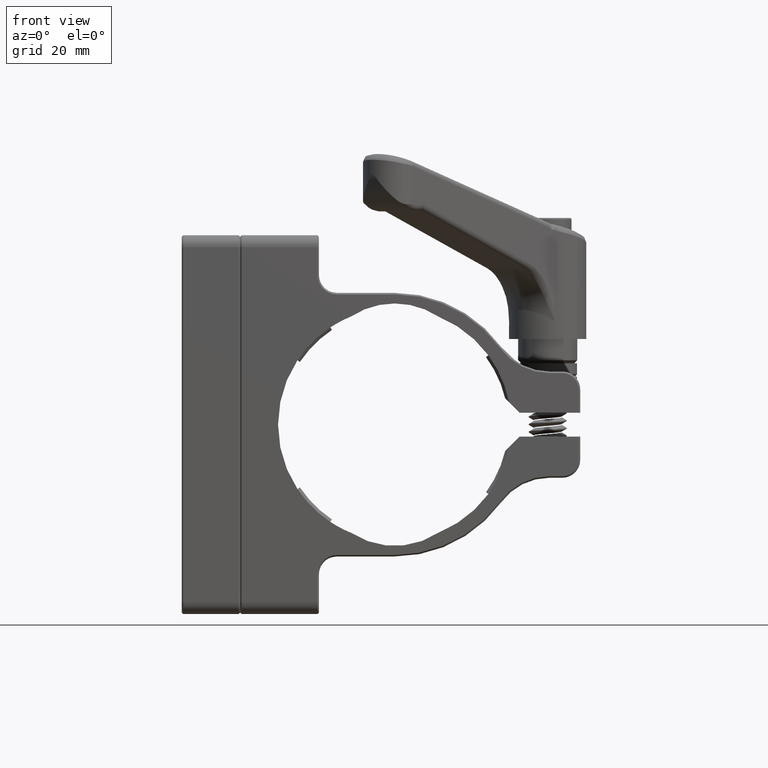
[diagram: clean part render]
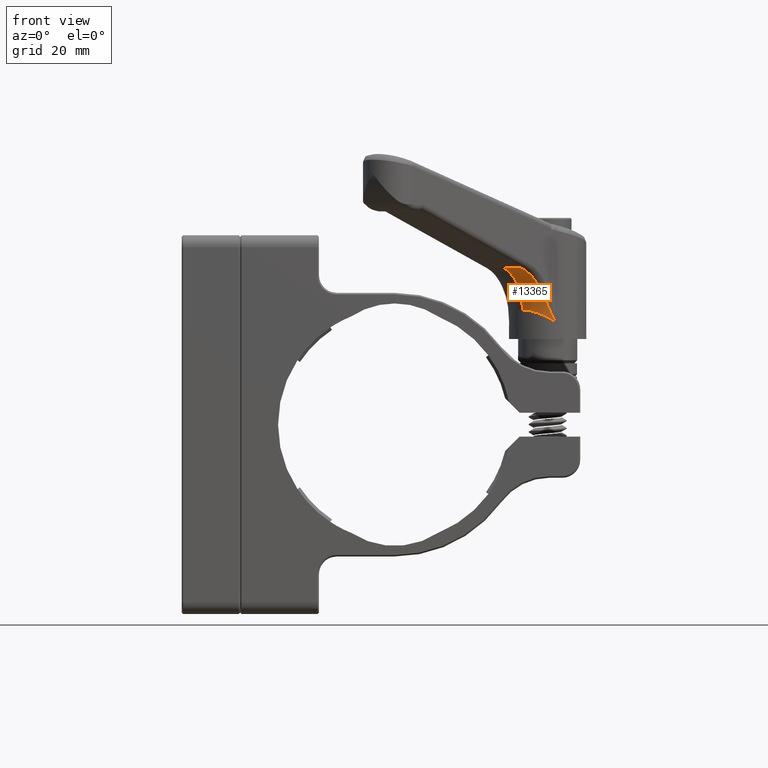
[diagram: same view with one face highlighted and labeled with its STEP entity id]
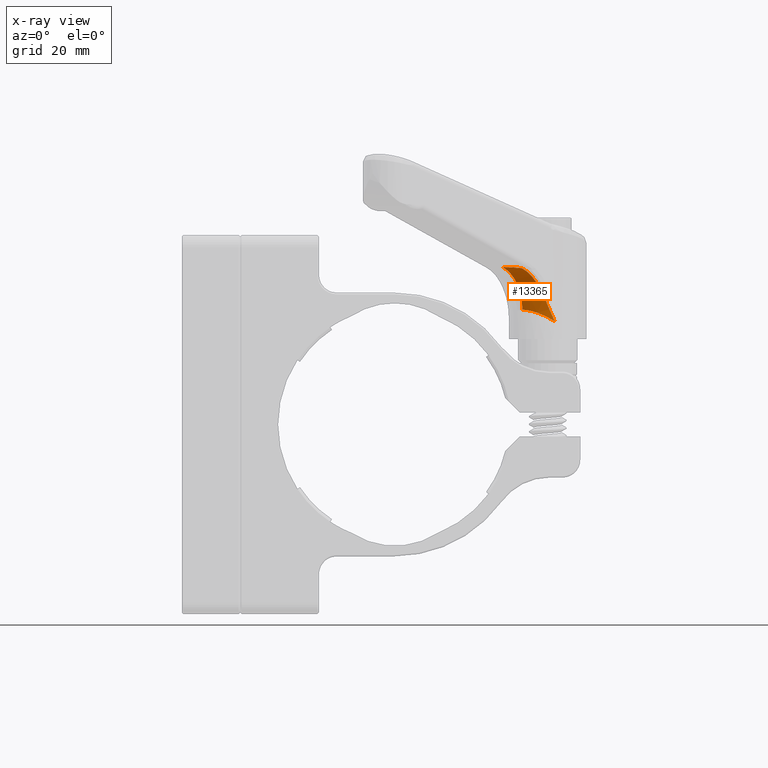
[diagram: x-ray of the same camera — body ghosted, the highlighted face saturated]
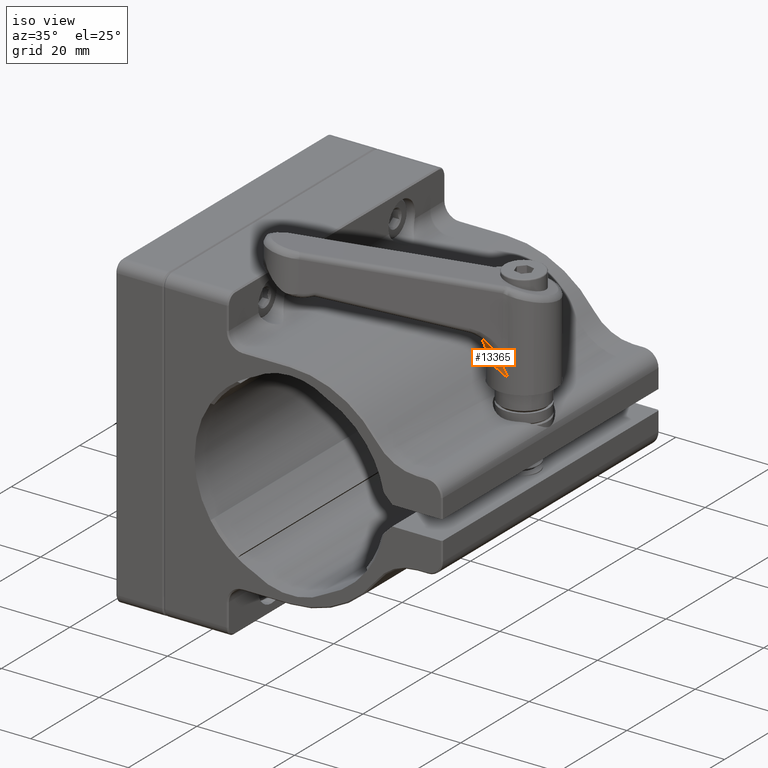
[diagram: same view with one face highlighted and labeled with its STEP entity id]
A machine part, front view. The second image highlights one B-rep face of the part: STEP entity #13365.
The next image is the same camera in x-ray: the body ghosted, the highlighted face saturated — about 0% of this face is hidden behind the body in this view.
A second angle (iso view) of the same face is appended — the face is thin or edge-on in the first view.
In plain terms, the highlighted face is a freeform B-spline surface patch.
Its self-contained STEP definition (entity closure, byte-faithful):
#25 = CARTESIAN_POINT ( 'NONE',  ( 45.69088704597130857, -6.453742316144195357, 17.61797061553146193 ) ) ;
#208 = CARTESIAN_POINT ( 'NONE',  ( 40.73553486959542624, -4.910587672800144077, 19.25086083805627624 ) ) ;
#268 = CARTESIAN_POINT ( 'NONE',  ( 44.23593948097993689, -6.454735057740339066, 18.37012175804300185 ) ) ;
#298 = CARTESIAN_POINT ( 'NONE',  ( 40.63719359826650646, -10.77046650938582495, 26.22679008906831655 ) ) ;
#751 = ORIENTED_EDGE ( 'NONE', *, *, #6478, .F. ) ;
#914 = CARTESIAN_POINT ( 'NONE',  ( 43.11573166805985835, -8.210056128275965648, 23.85748033936724966 ) ) ;
#972 = ORIENTED_EDGE ( 'NONE', *, *, #2085, .T. ) ;
#1061 = EDGE_CURVE ( 'NONE', #6924, #10843, #4206, .T. ) ;
#1066 = CARTESIAN_POINT ( 'NONE',  ( 46.13297107207620940, -6.369719061460112464, 17.33914807352784493 ) ) ;
#1074 = CARTESIAN_POINT ( 'NONE',  ( 40.63719359826650646, -10.77046650938582495, 26.22679008906831655 ) ) ;
#1292 = CARTESIAN_POINT ( 'NONE',  ( 40.73553486959542624, -4.910587672800144077, 19.25086083805627624 ) ) ;
#1333 = VERTEX_POINT ( 'NONE', #15014 ) ;
#1438 = CARTESIAN_POINT ( 'NONE',  ( 44.17207283345329927, -6.731122411469208977, 18.56910756929895001 ) ) ;
#1491 = CARTESIAN_POINT ( 'NONE',  ( 46.63010639130856561, -6.446397078288583771, 23.61125175658818875 ) ) ;
#1660 = CARTESIAN_POINT ( 'NONE',  ( 37.46618040148059237, -8.711838838238623595, 26.41130911785059965 ) ) ;
#1954 = CARTESIAN_POINT ( 'NONE',  ( 41.10298826300535779, -5.226624509432104659, 19.25086083805444659 ) ) ;
#2085 = EDGE_CURVE ( 'NONE', #6924, #15125, #6296, .T. ) ;
#2121 = CARTESIAN_POINT ( 'NONE',  ( 44.41360869066333095, -7.045834352741636941, 21.31542893947575124 ) ) ;
#2186 = ORIENTED_EDGE ( 'NONE', *, *, #1061, .F. ) ;
#2203 = CARTESIAN_POINT ( 'NONE',  ( 41.03503710846505470, -10.34188572275618156, 26.01410257833738982 ) ) ;
#2533 = CARTESIAN_POINT ( 'NONE',  ( 47.81761261137712182, -6.049987984454186396, 23.22002771427775158 ) ) ;
#2701 = CARTESIAN_POINT ( 'NONE',  ( 48.25138032395445009, -12.07046154797524906, 24.77841038234990378 ) ) ;
#2778 = CARTESIAN_POINT ( 'NONE',  ( 43.75364591723122487, -6.382283503177459849, 18.57573741498464770 ) ) ;
#2856 = CARTESIAN_POINT ( 'NONE',  ( 43.50168309838958436, -6.381588433122819204, 24.33585081072925149 ) ) ;
#3049 = CARTESIAN_POINT ( 'NONE',  ( 44.67014461123392266, -6.836369180693105285, 20.66046372033152068 ) ) ;
#3082 = CARTESIAN_POINT ( 'NONE',  ( 41.50603173132445534, -5.501220893155699621, 19.20758802995270287 ) ) ;
#3164 = CARTESIAN_POINT ( 'NONE',  ( 38.26593133180740125, -9.399683225163620648, 26.41130911785030477 ) ) ;
#3241 = CARTESIAN_POINT ( 'NONE',  ( 42.63778930818757118, -8.682070404616865744, 24.49253639865579046 ) ) ;
#3411 = CARTESIAN_POINT ( 'NONE',  ( 42.47129359198937948, -8.849057868957826756, 24.69538992827932944 ) ) ;
#3464 = VERTEX_POINT ( 'NONE', #14162 ) ;
#3587 = CARTESIAN_POINT ( 'NONE',  ( 35.76675894894713537, -10.68774198365021100, 19.25086083805627624 ) ) ;
#3829 = CARTESIAN_POINT ( 'NONE',  ( 47.24394208912980275, -6.285817855328690307, 23.42125603399848899 ) ) ;
#4076 = CARTESIAN_POINT ( 'NONE',  ( 46.16706670172853677, -6.363340619845429202, 17.31770510828718201 ) ) ;
#4206 =( BOUNDED_CURVE ( )  B_SPLINE_CURVE ( 3, ( #13764, #1438, #11335, #208 ),
 .UNSPECIFIED., .F., .T. ) 
 B_SPLINE_CURVE_WITH_KNOTS ( ( 4, 4 ),
 ( 5.390612508101001232, 6.283185307179586232 ),
 .UNSPECIFIED. ) 
 CURVE ( )  GEOMETRIC_REPRESENTATION_ITEM ( )  RATIONAL_B_SPLINE_CURVE ( ( 1.000000000000000000, 0.9347041185995073054, 0.9347041185995073054, 1.000000000000000000 ) ) 
 REPRESENTATION_ITEM ( '' )  );
#4492 = EDGE_CURVE ( 'NONE', #1333, #3464, #10331, .T. ) ;
#4569 = ORIENTED_EDGE ( 'NONE', *, *, #13582, .T. ) ;
#4845 = CARTESIAN_POINT ( 'NONE',  ( 37.46618040148054973, -8.711838838238588067, 26.41130911785059965 ) ) ;
#4982 = CARTESIAN_POINT ( 'NONE',  ( 41.99696466110569304, -11.36983149836491513, 26.06946237665000154 ) ) ;
#5222 = CARTESIAN_POINT ( 'NONE',  ( 44.74521676197844045, -6.580230192591647764, 24.09553193120199666 ) ) ;
#5728 = CARTESIAN_POINT ( 'NONE',  ( 44.95591233616147520, -6.702170477736975940, 20.00044409945069646 ) ) ;
#5933 = CARTESIAN_POINT ( 'NONE',  ( 44.18949786887070275, -7.231792475201791248, 21.86302979077876785 ) ) ;
#6107 = DIRECTION ( 'NONE',  ( 0.7581577385826994142, -0.6520711950601462137, -5.551115123125780853E-17 ) ) ;
#6181 = DIRECTION ( 'NONE',  ( 0.6520711950601461027, 0.7581577385826995252, 0.000000000000000000 ) ) ;
#6185 = CARTESIAN_POINT ( 'NONE',  ( 45.08470262685214180, -12.07262779764977978, 25.53057003783660051 ) ) ;
#6296 = B_SPLINE_CURVE_WITH_KNOTS ( 'NONE', 3,
 ( #15548, #8011, #14118, #5728, #3049, #11897 ),
 .UNSPECIFIED., .F., .F.,
 ( 4, 2, 4 ),
 ( -1.885856254933048403E-05, 0.002177756017439156765, 0.004374370597427644503 ),
 .UNSPECIFIED. ) ;
#6432 = CARTESIAN_POINT ( 'NONE',  ( 47.19294995744240140, -12.15038765854387570, 25.05166778854579590 ) ) ;
#6478 = EDGE_CURVE ( 'NONE', #10843, #1333, #9677, .T. ) ;
#6676 = CARTESIAN_POINT ( 'NONE',  ( 41.74905186723276529, -5.666283254704636008, 24.55442446694213388 ) ) ;
#6912 =( BOUNDED_SURFACE ( )  B_SPLINE_SURFACE ( 3, 2, ( 
 ( #4076, #2533, #9040 ),
 ( #25, #3829, #2701 ),
 ( #13981, #1491, #6432 ),
 ( #268, #13910, #6185 ),
 ( #2778, #5222, #7738 ),
 ( #14882, #2856, #4982 ),
 ( #12686, #9927, #7899 ),
 ( #3082, #6676, #14378 ),
 ( #1954, #12916, #3164 ),
 ( #11555, #14209, #1660 ) ),
 .UNSPECIFIED., .F., .F., .F. ) 
 B_SPLINE_SURFACE_WITH_KNOTS ( ( 4, 2, 2, 2, 4 ),
 ( 3, 3 ),
 ( 5.385257071306529753, 5.609739130274793872, 5.834221189243057992, 6.058703248211322112, 6.283185307179586232 ),
 ( 0.000000000000000000, 1.000000000000000000 ),
 .UNSPECIFIED. ) 
 GEOMETRIC_REPRESENTATION_ITEM ( )  RATIONAL_B_SPLINE_SURFACE ( (
 ( 1.000000000000000000, 0.7788317300686768974, 1.000000000000000000),
 ( 1.000000000000000000, 0.7852571084550986624, 1.000000000000000000),
 ( 1.000000000000000000, 0.7910239998534007722, 1.000000000000000000),
 ( 1.000000000000000000, 0.8010496639748816428, 1.000000000000000000),
 ( 1.000000000000000000, 0.8053075829320406331, 1.000000000000000000),
 ( 1.000000000000000000, 0.8121750208583313757, 1.000000000000000000),
 ( 1.000000000000000000, 0.8147845923028536053, 1.000000000000000000),
 ( 1.000000000000000000, 0.8182730906652833092, 1.000000000000000000),
 ( 1.000000000000000000, 0.8191529000014968753, 1.000000000000000000),
 ( 1.000000000000000000, 0.8191520442890011244, 1.000000000000000000) ) ) 
 REPRESENTATION_ITEM ( '' )  SURFACE ( )  );
#6924 = VERTEX_POINT ( 'NONE', #1066 ) ;
#7073 = CARTESIAN_POINT ( 'NONE',  ( 44.30509360253923745, -7.134438441998299574, 21.59248023239245384 ) ) ;
#7738 = CARTESIAN_POINT ( 'NONE',  ( 44.03500562250449235, -11.91493923304638436, 25.73618569477916296 ) ) ;
#7899 = CARTESIAN_POINT ( 'NONE',  ( 41.00870674811329053, -10.98243534218100592, 26.19710933096573058 ) ) ;
#8011 = CARTESIAN_POINT ( 'NONE',  ( 45.83653787877165797, -6.424353181173224847, 18.00643096349881134 ) ) ;
#8372 = CARTESIAN_POINT ( 'NONE',  ( 42.12836757413896294, -9.197768617705287753, 25.07559348617812134 ) ) ;
#8486 = EDGE_LOOP ( 'NONE', ( #751, #2186, #972, #4569, #8590 ) ) ;
#8590 = ORIENTED_EDGE ( 'NONE', *, *, #4492, .F. ) ;
#9040 = CARTESIAN_POINT ( 'NONE',  ( 49.28774121371618122, -11.87371063415618977, 24.47815338808149832 ) ) ;
#9677 = CIRCLE ( 'NONE', #14328, 7.619989900320585541 ) ;
#9927 = CARTESIAN_POINT ( 'NONE',  ( 42.89206178494124089, -6.196213016176981725, 24.42938122145192281 ) ) ;
#10331 =( BOUNDED_CURVE ( )  B_SPLINE_CURVE ( 3, ( #4845, #14738, #12318, #298 ),
 .UNSPECIFIED., .F., .T. ) 
 B_SPLINE_CURVE_WITH_KNOTS ( ( 4, 4 ),
 ( 0.000000000000000000, 0.2689983647772867803 ),
 .UNSPECIFIED. ) 
 CURVE ( )  GEOMETRIC_REPRESENTATION_ITEM ( )  RATIONAL_B_SPLINE_CURVE ( ( 1.000000000000000000, 0.9939790747544796634, 0.9939790747544796634, 1.000000000000000000 ) ) 
 REPRESENTATION_ITEM ( '' )  );
#10843 = VERTEX_POINT ( 'NONE', #1292 ) ;
#11335 = CARTESIAN_POINT ( 'NONE',  ( 42.24724404001368327, -6.210768301676609759, 19.25086083805627268 ) ) ;
#11555 = CARTESIAN_POINT ( 'NONE',  ( 40.73553486959544756, -4.910587672800161840, 19.25086083805627624 ) ) ;
#11897 = CARTESIAN_POINT ( 'NONE',  ( 44.41360869066333095, -7.045834352741636941, 21.31542893947575124 ) ) ;
#12027 = CARTESIAN_POINT ( 'NONE',  ( 43.94458369513666440, -7.444330127567390321, 22.39119507457043312 ) ) ;
#12318 = CARTESIAN_POINT ( 'NONE',  ( 39.49081660334992705, -10.22893215252801724, 26.34943020662440105 ) ) ;
#12686 = CARTESIAN_POINT ( 'NONE',  ( 42.36318327605681588, -5.953835462579552207, 19.03666105117164875 ) ) ;
#12916 = CARTESIAN_POINT ( 'NONE',  ( 41.21317256486080538, -5.321391080738353985, 24.58643520733327748 ) ) ;
#13031 = CARTESIAN_POINT ( 'NONE',  ( 44.41360869066333095, -7.045834352741636941, 21.31542893947575124 ) ) ;
#13330 = CARTESIAN_POINT ( 'NONE',  ( 41.41252489479764876, -9.941063690619113657, 25.74166161624390625 ) ) ;
#13365 = ADVANCED_FACE ( 'NONE', ( #15120 ), #6912, .F. ) ;
#13402 = CARTESIAN_POINT ( 'NONE',  ( 41.95269476583417401, -9.378693819213260952, 25.25228752246087183 ) ) ;
#13555 = B_SPLINE_CURVE_WITH_KNOTS ( 'NONE', 3,
 ( #2121, #7073, #5933, #12027, #14540, #14630, #914, #3241, #3411, #8372, #13402, #13330, #2203, #1074 ),
 .UNSPECIFIED., .F., .F.,
 ( 4, 2, 2, 2, 2, 2, 4 ),
 ( 0.000000000000000000, 0.0009294706489875502811, 0.001858941297975100562, 0.003717882595950192885, 0.004647353244937735793, 0.005576823893925278268, 0.007435765191900369289 ),
 .UNSPECIFIED. ) ;
#13582 = EDGE_CURVE ( 'NONE', #15125, #3464, #13555, .T. ) ;
#13764 = CARTESIAN_POINT ( 'NONE',  ( 46.13297107207620940, -6.369719061460112464, 17.33914807352784493 ) ) ;
#13910 = CARTESIAN_POINT ( 'NONE',  ( 45.38164450576303466, -6.592426883521213199, 23.94785130570520693 ) ) ;
#13981 = CARTESIAN_POINT ( 'NONE',  ( 45.20459435388582392, -6.490462586990787486, 17.89121950875075484 ) ) ;
#14118 = CARTESIAN_POINT ( 'NONE',  ( 45.53900989080427308, -6.495370441598078415, 18.67209369843584454 ) ) ;
#14162 = CARTESIAN_POINT ( 'NONE',  ( 40.63719359826650646, -10.77046650938582495, 26.22679008906831655 ) ) ;
#14209 = CARTESIAN_POINT ( 'NONE',  ( 40.73553486959546177, -4.910587672800166281, 24.58643520734242571 ) ) ;
#14328 = AXIS2_PLACEMENT_3D ( 'NONE', #3587, #6107, #6181 ) ;
#14378 = CARTESIAN_POINT ( 'NONE',  ( 39.14314295791741216, -9.997333749796887048, 26.36803630974726076 ) ) ;
#14540 = CARTESIAN_POINT ( 'NONE',  ( 43.81489298910824459, -7.559864858988586178, 22.64939207637511132 ) ) ;
#14630 = CARTESIAN_POINT ( 'NONE',  ( 43.40913279055432383, -7.930469363208495714, 23.39551441734701953 ) ) ;
#14738 = CARTESIAN_POINT ( 'NONE',  ( 38.42740950980548575, -9.538566287547162403, 26.41130911785059965 ) ) ;
#14882 = CARTESIAN_POINT ( 'NONE',  ( 42.81724804787678096, -6.131828418616660059, 18.90901409685587709 ) ) ;
#15014 = CARTESIAN_POINT ( 'NONE',  ( 37.46618040148054973, -8.711838838238588067, 26.41130911785059965 ) ) ;
#15120 = FACE_OUTER_BOUND ( 'NONE', #8486, .T. ) ;
#15125 = VERTEX_POINT ( 'NONE', #13031 ) ;
#15548 = CARTESIAN_POINT ( 'NONE',  ( 46.13297107207620940, -6.369719061460112464, 17.33914807352784493 ) ) ;